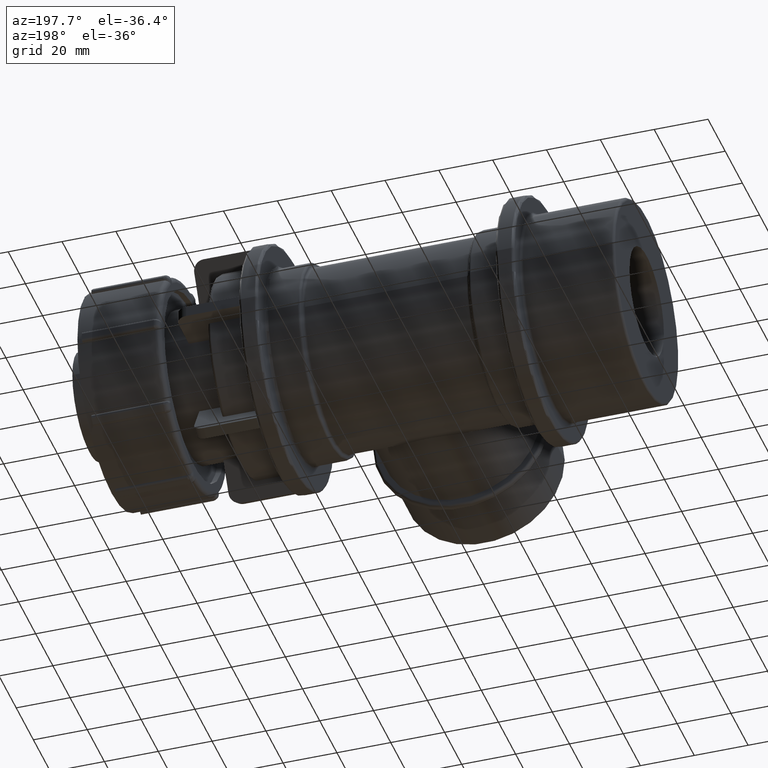
[diagram: clean part render]
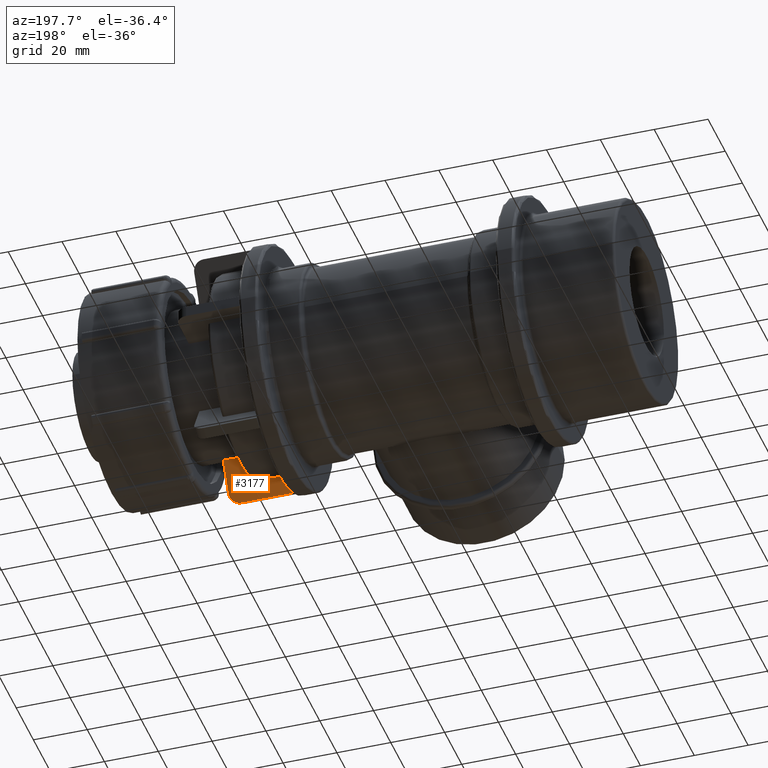
[diagram: same view with one face highlighted and labeled with its STEP entity id]
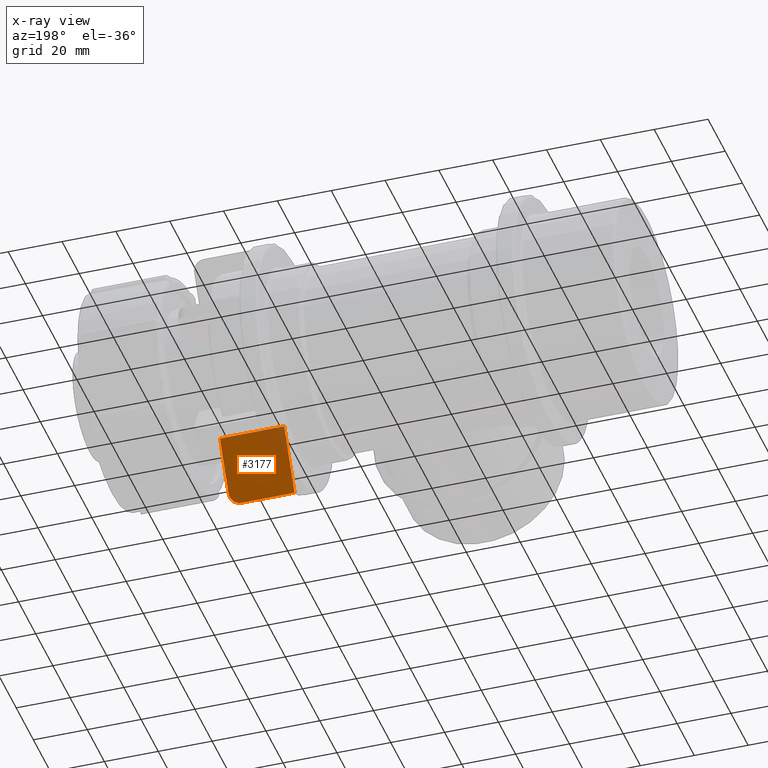
[diagram: x-ray of the same camera — body ghosted, the highlighted face saturated]
A machine part, auxiliary view. The second image highlights one B-rep face of the part: STEP entity #3177.
The next image is the same camera in x-ray: the body ghosted, the highlighted face saturated — about 14% of this face is hidden behind the body in this view.
In plain terms, the highlighted planar face has unit normal (0, 0.866, -0.5).
Its self-contained STEP definition (entity closure, byte-faithful):
#150=LINE('',#6022,#332);
#154=LINE('',#6031,#336);
#156=LINE('',#6035,#338);
#158=LINE('',#6038,#340);
#332=VECTOR('',#4373,19.77);
#336=VECTOR('',#4381,19.9);
#338=VECTOR('',#4385,23.87);
#340=VECTOR('',#4389,24.);
#483=PLANE('',#3551);
#694=CIRCLE('',#3544,4.1);
#970=FACE_OUTER_BOUND('',#1231,.T.);
#1231=EDGE_LOOP('',(#2789,#2790,#2791,#2792,#2793));
#1567=VERTEX_POINT('',#6009);
#1568=VERTEX_POINT('',#6010);
#1572=VERTEX_POINT('',#6020);
#1575=VERTEX_POINT('',#6030);
#1576=VERTEX_POINT('',#6034);
#1978=EDGE_CURVE('',#1567,#1568,#694,.T.);
#1984=EDGE_CURVE('',#1567,#1572,#150,.T.);
#1988=EDGE_CURVE('',#1575,#1568,#154,.T.);
#1990=EDGE_CURVE('',#1576,#1575,#156,.T.);
#1992=EDGE_CURVE('',#1572,#1576,#158,.T.);
#2789=ORIENTED_EDGE('',*,*,#1978,.F.);
#2790=ORIENTED_EDGE('',*,*,#1984,.T.);
#2791=ORIENTED_EDGE('',*,*,#1992,.T.);
#2792=ORIENTED_EDGE('',*,*,#1990,.T.);
#2793=ORIENTED_EDGE('',*,*,#1988,.T.);
#3177=ADVANCED_FACE('',(#970),#483,.T.);
#3544=AXIS2_PLACEMENT_3D('',#6011,#4363,#4364);
#3551=AXIS2_PLACEMENT_3D('',#6039,#4390,#4391);
#4363=DIRECTION('center_axis',(0.,-0.866025403784438,0.5));
#4364=DIRECTION('ref_axis',(0.707106781186547,-0.353553390593274,-0.612372435695794));
#4373=DIRECTION('',(-1.,0.,0.));
#4381=DIRECTION('',(0.,-0.500000000000001,-0.866025403784438));
#4385=DIRECTION('',(1.,-9.3022457027663E-17,-1.61119621816805E-16));
#4389=DIRECTION('',(0.,0.5,0.866025403784438));
#4390=DIRECTION('center_axis',(0.,0.866025403784438,-0.5));
#4391=DIRECTION('ref_axis',(1.,0.,0.));
#6009=CARTESIAN_POINT('',(70.92,-20.2246479222419,-39.1301177665153));
#6010=CARTESIAN_POINT('',(75.02,-18.1746479222419,-35.5794136109991));
#6011=CARTESIAN_POINT('Origin',(70.92,-18.1746479222419,-35.5794136109991));
#6020=CARTESIAN_POINT('',(51.15,-20.2246479222419,-39.1301177665153));
#6022=CARTESIAN_POINT('',(75.02,-20.2246479222419,-39.1301177665153));
#6030=CARTESIAN_POINT('',(75.02,-8.22464792224191,-18.3455080756888));
#6031=CARTESIAN_POINT('',(75.02,-8.22464792224191,-18.3455080756888));
#6034=CARTESIAN_POINT('',(51.15,-8.22464792224191,-18.3455080756888));
#6035=CARTESIAN_POINT('',(51.15,-8.22464792224191,-18.3455080756888));
#6038=CARTESIAN_POINT('',(51.15,-20.2246479222419,-39.1301177665153));
#6039=CARTESIAN_POINT('Origin',(63.085,-14.2246479222419,-28.737812921102));